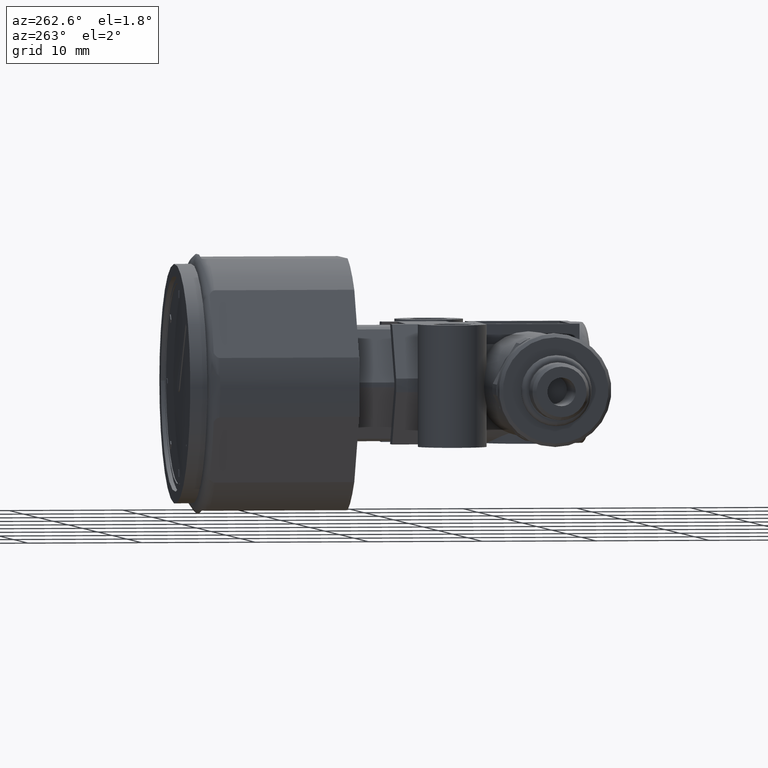
[diagram: clean part render]
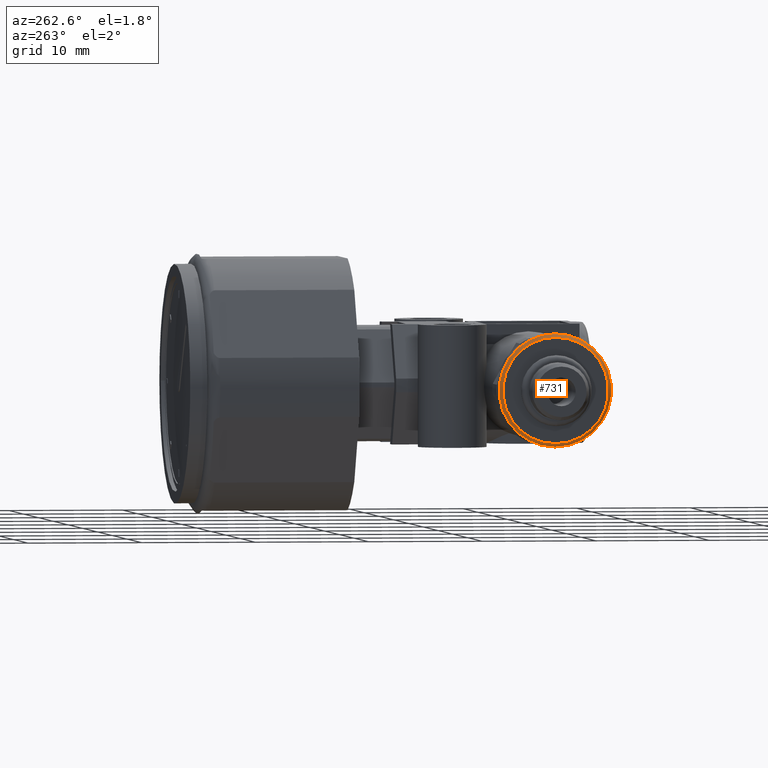
[diagram: same view with one face highlighted and labeled with its STEP entity id]
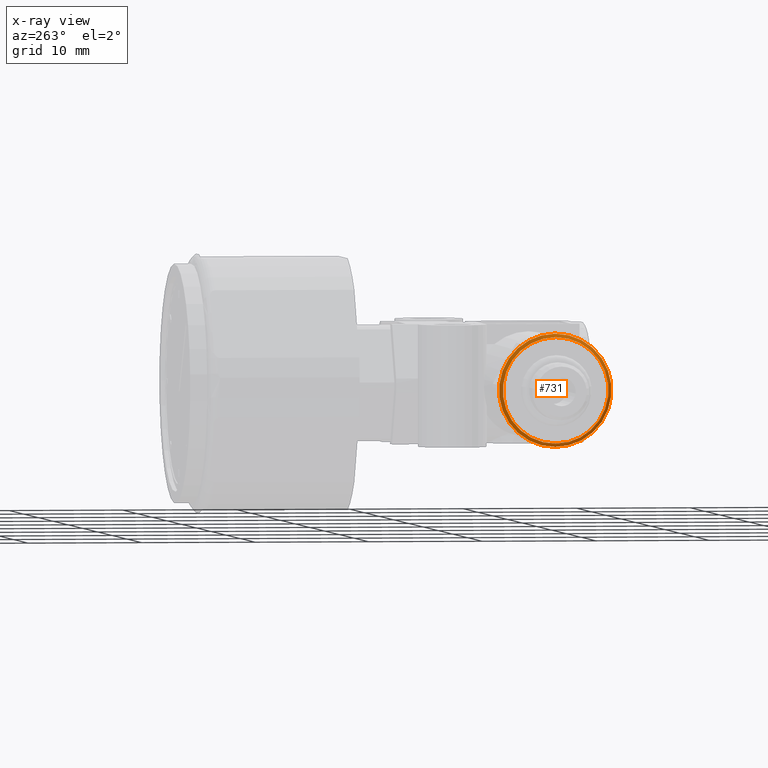
[diagram: x-ray of the same camera — body ghosted, the highlighted face saturated]
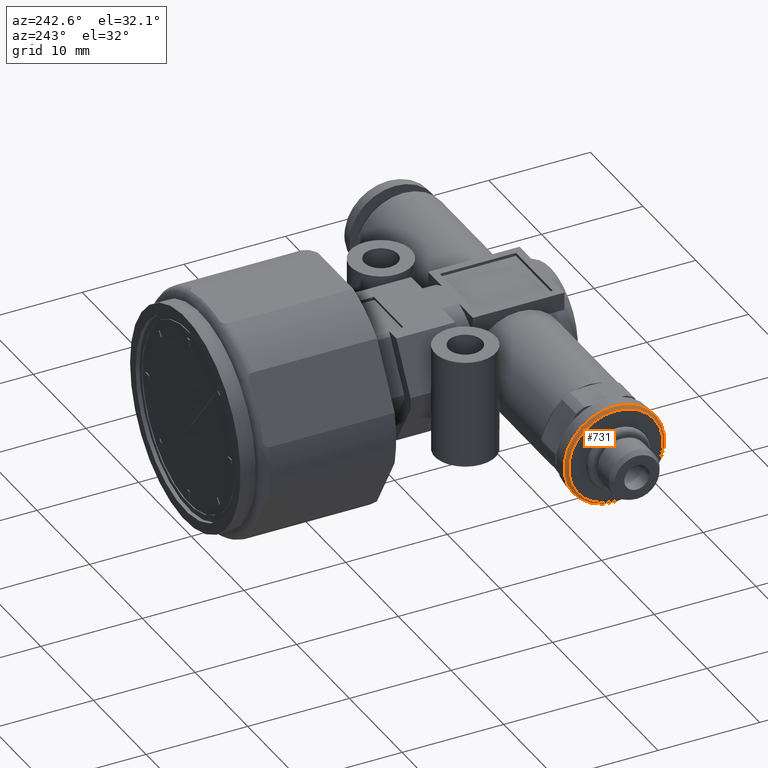
[diagram: same view with one face highlighted and labeled with its STEP entity id]
A machine part, auxiliary view. The second image highlights one B-rep face of the part: STEP entity #731.
The next image is the same camera in x-ray: the body ghosted, the highlighted face saturated — about 0% of this face is hidden behind the body in this view.
A second angle (auxiliary view) of the same face is appended — the face is thin or edge-on in the first view.
In plain terms, the highlighted conical surface has half-angle 45 deg.
Its self-contained STEP definition (entity closure, byte-faithful):
#731 = ADVANCED_FACE( '', ( #1514, #1515 ), #1516, .T. );
#1514 = FACE_OUTER_BOUND( '', #2300, .T. );
#1515 = FACE_BOUND( '', #2301, .T. );
#1516 = CONICAL_SURFACE( '', #2302, 4.65000000000000, 0.785398163397448 );
#2300 = EDGE_LOOP( '', ( #4075 ) );
#2301 = EDGE_LOOP( '', ( #4076 ) );
#2302 = AXIS2_PLACEMENT_3D( '', #4077, #4078, #4079 );
#4075 = ORIENTED_EDGE( '', *, *, #4288, .F. );
#4076 = ORIENTED_EDGE( '', *, *, #4936, .T. );
#4077 = CARTESIAN_POINT( '', ( 0.000000000000000, 0.000000000000000, 0.000000000000000 ) );
#4078 = DIRECTION( '', ( 1.00000000000000, -0.000000000000000, -0.000000000000000 ) );
#4079 = DIRECTION( '', ( -0.000000000000000, 0.000000000000000, -1.00000000000000 ) );
#4288 = EDGE_CURVE( '', #5012, #5012, #5013, .T. );
#4936 = EDGE_CURVE( '', #5994, #5994, #5995, .T. );
#5012 = VERTEX_POINT( '', #6078 );
#5013 = CIRCLE( '', #6079, 4.95000000000000 );
#5994 = VERTEX_POINT( '', #7912 );
#5995 = CIRCLE( '', #7913, 4.65000000000000 );
#6078 = CARTESIAN_POINT( '', ( 0.300000000000000, 0.000000000000000, -4.95000000000000 ) );
#6079 = AXIS2_PLACEMENT_3D( '', #8041, #8042, #8043 );
#7912 = CARTESIAN_POINT( '', ( 0.000000000000000, 0.000000000000000, -4.65000000000000 ) );
#7913 = AXIS2_PLACEMENT_3D( '', #8744, #8745, #8746 );
#8041 = CARTESIAN_POINT( '', ( 0.300000000000000, 0.000000000000000, 0.000000000000000 ) );
#8042 = DIRECTION( '', ( 1.00000000000000, 0.000000000000000, -0.000000000000000 ) );
#8043 = DIRECTION( '', ( -0.000000000000000, 0.000000000000000, -1.00000000000000 ) );
#8744 = CARTESIAN_POINT( '', ( 0.000000000000000, 0.000000000000000, 0.000000000000000 ) );
#8745 = DIRECTION( '', ( 1.00000000000000, 0.000000000000000, -0.000000000000000 ) );
#8746 = DIRECTION( '', ( -0.000000000000000, 0.000000000000000, -1.00000000000000 ) );